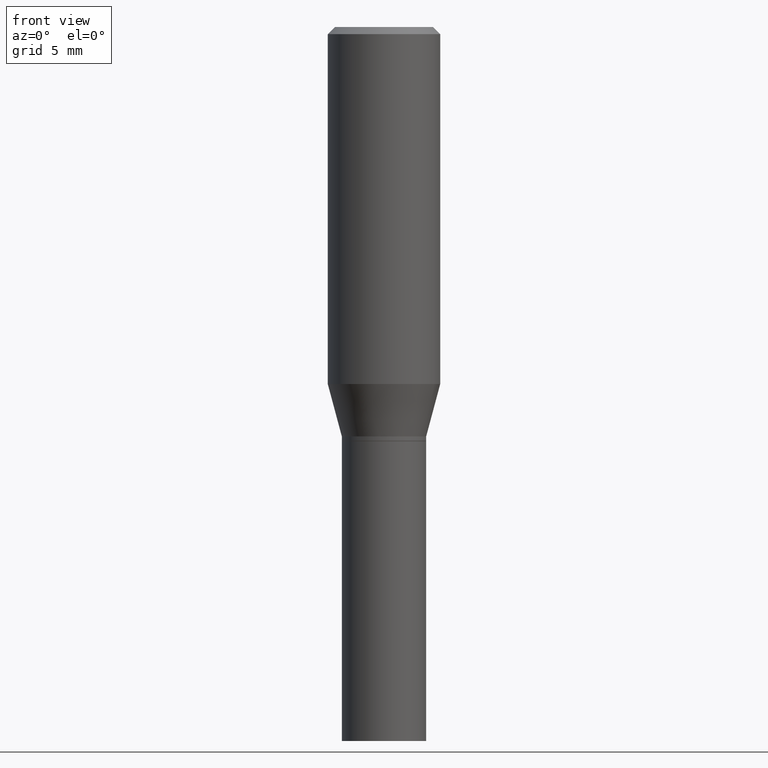
[diagram: clean part render]
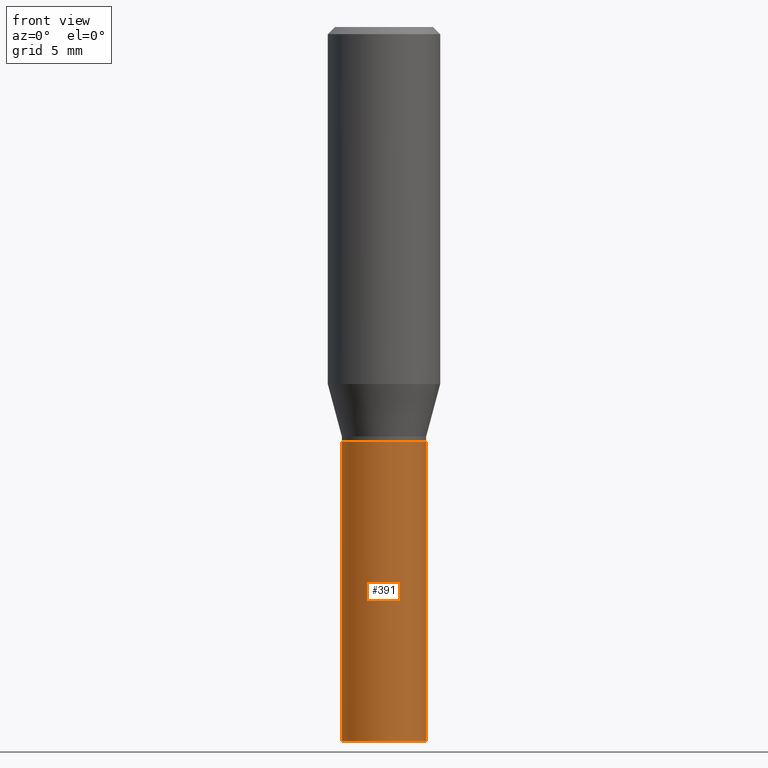
[diagram: same view with one face highlighted and labeled with its STEP entity id]
A machine part, front view. The second image highlights one B-rep face of the part: STEP entity #391.
In plain terms, the highlighted cylindrical surface (partial cylindrical patch) has radius 2.2504 mm, axis along (-0, 0, 1).
Its self-contained STEP definition (entity closure, byte-faithful):
#3 = AXIS2_PLACEMENT_3D ( 'NONE', #121, #409, #237 ) ;
#14 = EDGE_CURVE ( 'NONE', #461, #320, #445, .T. ) ;
#15 = CARTESIAN_POINT ( 'NONE',  ( 0.08859999999999999820, -6.186904932430032487E-16, 4.320292623355198765E-30 ) ) ;
#31 = FACE_OUTER_BOUND ( 'NONE', #397, .T. ) ;
#34 = DIRECTION ( 'NONE',  ( 1.000000000000000000, -6.982962677686266711E-15, 4.876176775795935232E-29 ) ) ;
#52 = DIRECTION ( 'NONE',  ( -2.445468806185136877E-29, 3.491481338843145188E-15, 1.000000000000000000 ) ) ;
#91 = DIRECTION ( 'NONE',  ( -2.445468806185136597E-29, 3.491481338843145583E-15, 1.000000000000000000 ) ) ;
#92 = EDGE_CURVE ( 'NONE', #264, #355, #279, .T. ) ;
#99 = CARTESIAN_POINT ( 'NONE',  ( -0.08859999999999999820, 6.295408638834487519E-16, -4.358176489965846267E-30 ) ) ;
#105 = CARTESIAN_POINT ( 'NONE',  ( -0.08859999999999999820, -3.508039096712621630E-15, -0.8701000000000000956 ) ) ;
#110 = ORIENTED_EDGE ( 'NONE', *, *, #14, .T. ) ;
#121 = CARTESIAN_POINT ( 'NONE',  ( 3.668203209277704895E-29, -5.237222008264718177E-15, -1.500000000000000222 ) ) ;
#123 = EDGE_CURVE ( 'NONE', #355, #320, #140, .T. ) ;
#129 = ORIENTED_EDGE ( 'NONE', *, *, #123, .F. ) ;
#135 = AXIS2_PLACEMENT_3D ( 'NONE', #431, #256, #34 ) ;
#140 = CIRCLE ( 'NONE', #204, 0.08859999999999999820 ) ;
#142 = CARTESIAN_POINT ( 'NONE',  ( -0.08859999999999999820, -3.508039096712621630E-15, -1.500000000000000222 ) ) ;
#173 = CARTESIAN_POINT ( 'NONE',  ( 2.127802408261687534E-29, -3.037937912927421601E-15, -0.8701000000000000956 ) ) ;
#204 = AXIS2_PLACEMENT_3D ( 'NONE', #173, #91, #454 ) ;
#237 = DIRECTION ( 'NONE',  ( 1.000000000000000000, -6.982962677686269077E-15, 0.000000000000000000 ) ) ;
#256 = DIRECTION ( 'NONE',  ( -2.445468806185136597E-29, 3.491481338843145583E-15, 1.000000000000000000 ) ) ;
#262 = CIRCLE ( 'NONE', #3, 0.08859999999999999820 ) ;
#264 = VERTEX_POINT ( 'NONE', #142 ) ;
#279 = LINE ( 'NONE', #99, #400 ) ;
#283 = CARTESIAN_POINT ( 'NONE',  ( 0.08859999999999999820, -3.656628406170424159E-15, -0.8701000000000000956 ) ) ;
#320 = VERTEX_POINT ( 'NONE', #283 ) ;
#322 = ORIENTED_EDGE ( 'NONE', *, *, #92, .F. ) ;
#355 = VERTEX_POINT ( 'NONE', #105 ) ;
#366 = VECTOR ( 'NONE', #52, 39.37007874015748143 ) ;
#371 = CARTESIAN_POINT ( 'NONE',  ( 0.08859999999999999820, -5.855912501507721918E-15, -1.500000000000000222 ) ) ;
#384 = DIRECTION ( 'NONE',  ( -2.445468806185136877E-29, 3.491481338843145188E-15, 1.000000000000000000 ) ) ;
#391 = ADVANCED_FACE ( 'NONE', ( #31 ), #464, .T. ) ;
#397 = EDGE_LOOP ( 'NONE', ( #322, #447, #110, #129 ) ) ;
#400 = VECTOR ( 'NONE', #384, 39.37007874015748143 ) ;
#409 = DIRECTION ( 'NONE',  ( -2.445468806185136597E-29, 3.491481338843145583E-15, 1.000000000000000000 ) ) ;
#431 = CARTESIAN_POINT ( 'NONE',  ( 0.000000000000000000, 0.000000000000000000, 0.000000000000000000 ) ) ;
#445 = LINE ( 'NONE', #15, #366 ) ;
#447 = ORIENTED_EDGE ( 'NONE', *, *, #456, .T. ) ;
#454 = DIRECTION ( 'NONE',  ( 1.000000000000000000, -6.982962677686263555E-15, 0.000000000000000000 ) ) ;
#456 = EDGE_CURVE ( 'NONE', #264, #461, #262, .T. ) ;
#461 = VERTEX_POINT ( 'NONE', #371 ) ;
#464 = CYLINDRICAL_SURFACE ( 'NONE', #135, 0.08859999999999999820 ) ;